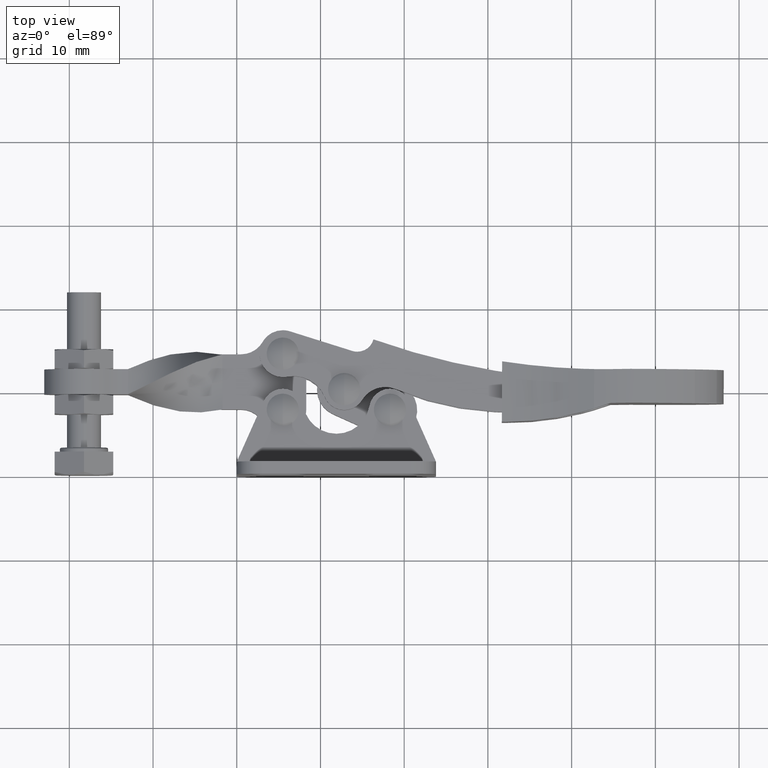
[diagram: clean part render]
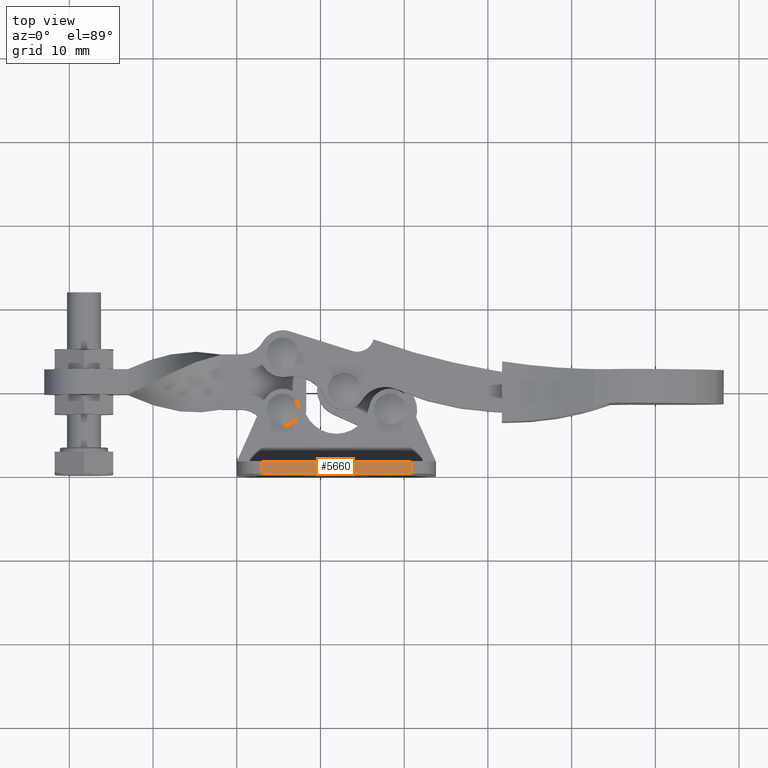
[diagram: same view with one face highlighted and labeled with its STEP entity id]
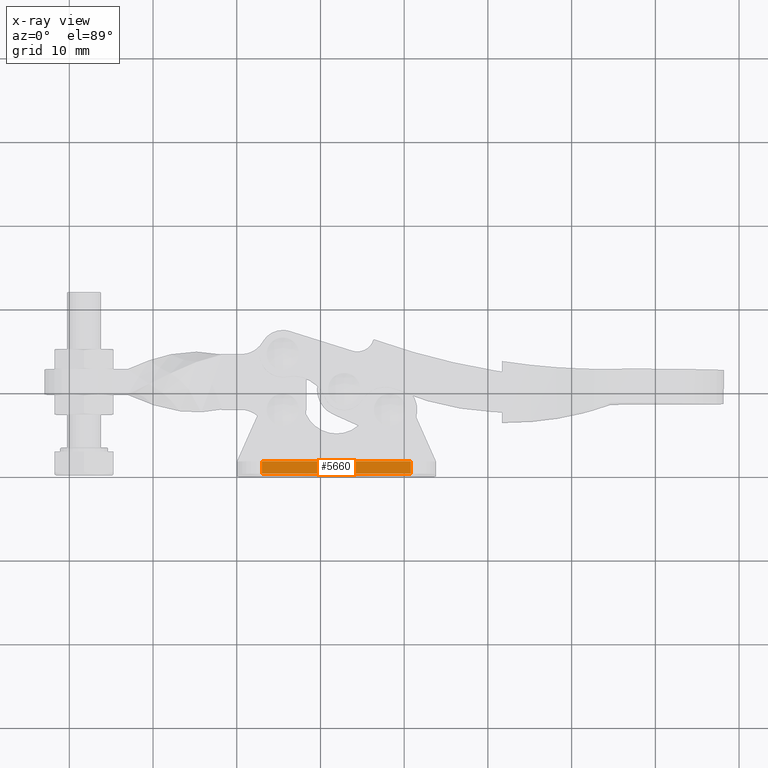
[diagram: x-ray of the same camera — body ghosted, the highlighted face saturated]
A machine part, top view. The second image highlights one B-rep face of the part: STEP entity #5660.
The next image is the same camera in x-ray: the body ghosted, the highlighted face saturated — about 0% of this face is hidden behind the body in this view.
In plain terms, the highlighted planar face has unit normal (-0, 0, 1).
Its self-contained STEP definition (entity closure, byte-faithful):
#55 = CARTESIAN_POINT ( 'NONE',  ( 2.999999999999929800, 1.500000000000000000, 10.39999999999997900 ) ) ;
#163 = AXIS2_PLACEMENT_3D ( 'NONE', #7134, #7104, #7093 ) ;
#398 = ORIENTED_EDGE ( 'NONE', *, *, #5663, .F. ) ;
#1302 = FACE_OUTER_BOUND ( 'NONE', #2028, .T. ) ;
#1996 = LINE ( 'NONE', #7822, #6032 ) ;
#2028 = EDGE_LOOP ( 'NONE', ( #398, #2469, #6407, #6626 ) ) ;
#2292 = VECTOR ( 'NONE', #7066, 1000.000000000000000 ) ;
#2469 = ORIENTED_EDGE ( 'NONE', *, *, #5625, .F. ) ;
#2725 = VECTOR ( 'NONE', #7040, 1000.000000000000000 ) ;
#2926 = VERTEX_POINT ( 'NONE', #4743 ) ;
#3292 = VERTEX_POINT ( 'NONE', #7252 ) ;
#3983 = CARTESIAN_POINT ( 'NONE',  ( 2.999999999999929800, 0.0000000000000000000, 10.39999999999997900 ) ) ;
#4169 = VERTEX_POINT ( 'NONE', #3983 ) ;
#4743 = CARTESIAN_POINT ( 'NONE',  ( 20.80000000000021700, 1.500000000000000000, 10.39999999999998100 ) ) ;
#5350 = VECTOR ( 'NONE', #7318, 1000.000000000000000 ) ;
#5560 = EDGE_CURVE ( 'NONE', #2926, #8431, #1996, .T. ) ;
#5625 = EDGE_CURVE ( 'NONE', #2926, #3292, #6668, .T. ) ;
#5660 = ADVANCED_FACE ( 'NONE', ( #1302 ), #7156, .T. ) ;
#5663 = EDGE_CURVE ( 'NONE', #3292, #4169, #6677, .T. ) ;
#5669 = EDGE_CURVE ( 'NONE', #8431, #4169, #8170, .T. ) ;
#6032 = VECTOR ( 'NONE', #7830, 1000.000000000000000 ) ;
#6407 = ORIENTED_EDGE ( 'NONE', *, *, #5560, .T. ) ;
#6626 = ORIENTED_EDGE ( 'NONE', *, *, #5669, .T. ) ;
#6668 = LINE ( 'NONE', #7337, #5350 ) ;
#6677 = LINE ( 'NONE', #7072, #2292 ) ;
#7040 = DIRECTION ( 'NONE',  ( 0.0000000000000000000, -1.000000000000000000, 0.0000000000000000000 ) ) ;
#7058 = CARTESIAN_POINT ( 'NONE',  ( 2.999999999999929800, 1.500000000000000000, 10.39999999999997900 ) ) ;
#7066 = DIRECTION ( 'NONE',  ( -1.000000000000000000, 0.0000000000000000000, -1.949127501097504600E-016 ) ) ;
#7072 = CARTESIAN_POINT ( 'NONE',  ( 20.80000000000021700, 0.0000000000000000000, 10.39999999999998300 ) ) ;
#7093 = DIRECTION ( 'NONE',  ( 1.000000000000000000, 0.0000000000000000000, 1.949127501097504400E-016 ) ) ;
#7104 = DIRECTION ( 'NONE',  ( -1.949127501097504400E-016, 0.0000000000000000000, 1.000000000000000000 ) ) ;
#7134 = CARTESIAN_POINT ( 'NONE',  ( 20.80000000000021700, 1.500000000000000000, 10.39999999999998300 ) ) ;
#7156 = PLANE ( 'NONE',  #163 ) ;
#7252 = CARTESIAN_POINT ( 'NONE',  ( 20.80000000000021700, 0.0000000000000000000, 10.39999999999998100 ) ) ;
#7318 = DIRECTION ( 'NONE',  ( 0.0000000000000000000, -1.000000000000000000, 0.0000000000000000000 ) ) ;
#7337 = CARTESIAN_POINT ( 'NONE',  ( 20.80000000000021700, 1.500000000000000000, 10.39999999999998100 ) ) ;
#7822 = CARTESIAN_POINT ( 'NONE',  ( 20.80000000000021700, 1.500000000000000000, 10.39999999999998300 ) ) ;
#7830 = DIRECTION ( 'NONE',  ( -1.000000000000000000, 0.0000000000000000000, -1.949127501097504600E-016 ) ) ;
#8170 = LINE ( 'NONE', #7058, #2725 ) ;
#8431 = VERTEX_POINT ( 'NONE', #55 ) ;